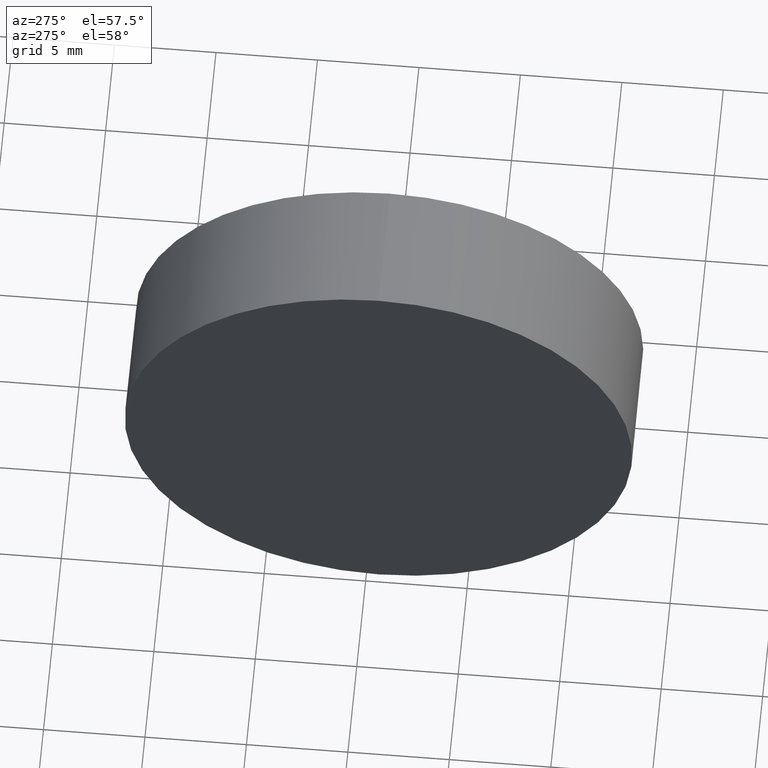
[diagram: clean part render]
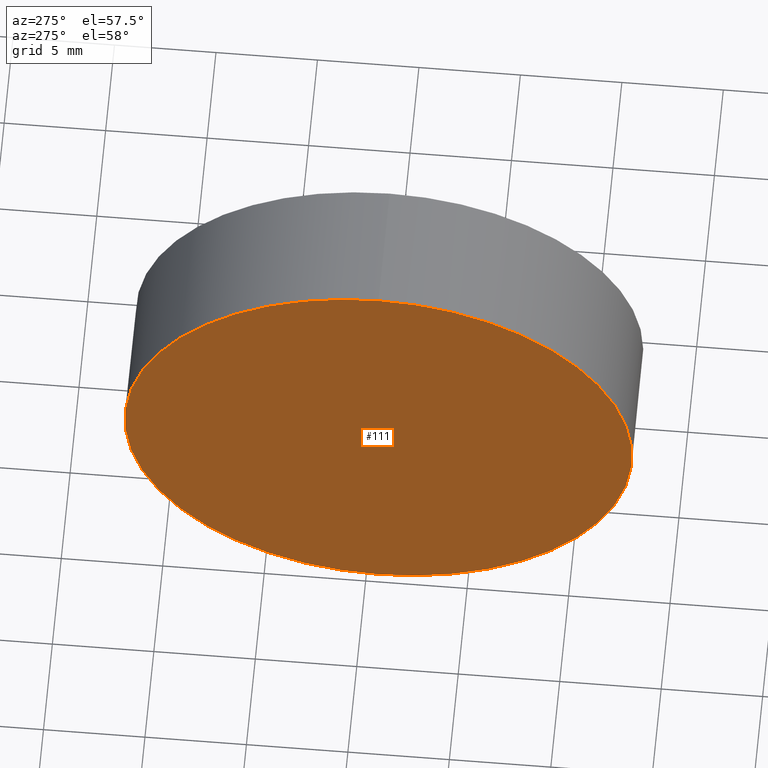
[diagram: same view with one face highlighted and labeled with its STEP entity id]
A machine part, auxiliary view. The second image highlights one B-rep face of the part: STEP entity #111.
In plain terms, the highlighted planar face has unit normal (1, 0, 0).
Its self-contained STEP definition (entity closure, byte-faithful):
#3 = CIRCLE ( 'NONE', #38, 12.49999999999999600 ) ;
#4 = DIRECTION ( 'NONE',  ( 0.0000000000000000000, 0.0000000000000000000, -1.000000000000000000 ) ) ;
#16 = ORIENTED_EDGE ( 'NONE', *, *, #25, .T. ) ;
#18 = DIRECTION ( 'NONE',  ( 0.0000000000000000000, 0.0000000000000000000, 1.000000000000000000 ) ) ;
#22 = AXIS2_PLACEMENT_3D ( 'NONE', #185, #83, #18 ) ;
#25 = EDGE_CURVE ( 'NONE', #77, #121, #3, .T. ) ;
#26 = ORIENTED_EDGE ( 'NONE', *, *, #29, .T. ) ;
#28 = CARTESIAN_POINT ( 'NONE',  ( 115.0926555349195200, 69.37802112337243400, 12.49999999999999600 ) ) ;
#29 = EDGE_CURVE ( 'NONE', #121, #77, #174, .T. ) ;
#38 = AXIS2_PLACEMENT_3D ( 'NONE', #74, #167, #84 ) ;
#74 = CARTESIAN_POINT ( 'NONE',  ( 115.0926555349195200, 69.37802112337243400, 0.0000000000000000000 ) ) ;
#77 = VERTEX_POINT ( 'NONE', #28 ) ;
#83 = DIRECTION ( 'NONE',  ( -1.000000000000000000, -0.0000000000000000000, -0.0000000000000000000 ) ) ;
#84 = DIRECTION ( 'NONE',  ( 0.0000000000000000000, 0.0000000000000000000, 1.000000000000000000 ) ) ;
#93 = DIRECTION ( 'NONE',  ( 1.000000000000000000, 0.0000000000000000000, 0.0000000000000000000 ) ) ;
#97 = CARTESIAN_POINT ( 'NONE',  ( 115.0926555349195200, 69.37802112337243400, 0.0000000000000000000 ) ) ;
#111 = ADVANCED_FACE ( 'NONE', ( #168 ), #122, .F. ) ;
#121 = VERTEX_POINT ( 'NONE', #130 ) ;
#122 = PLANE ( 'NONE',  #161 ) ;
#130 = CARTESIAN_POINT ( 'NONE',  ( 115.0926555349195200, 69.37802112337243400, -12.49999999999999600 ) ) ;
#160 = EDGE_LOOP ( 'NONE', ( #16, #26 ) ) ;
#161 = AXIS2_PLACEMENT_3D ( 'NONE', #97, #93, #4 ) ;
#167 = DIRECTION ( 'NONE',  ( -1.000000000000000000, -0.0000000000000000000, -0.0000000000000000000 ) ) ;
#168 = FACE_OUTER_BOUND ( 'NONE', #160, .T. ) ;
#174 = CIRCLE ( 'NONE', #22, 12.49999999999999600 ) ;
#185 = CARTESIAN_POINT ( 'NONE',  ( 115.0926555349195200, 69.37802112337243400, 0.0000000000000000000 ) ) ;